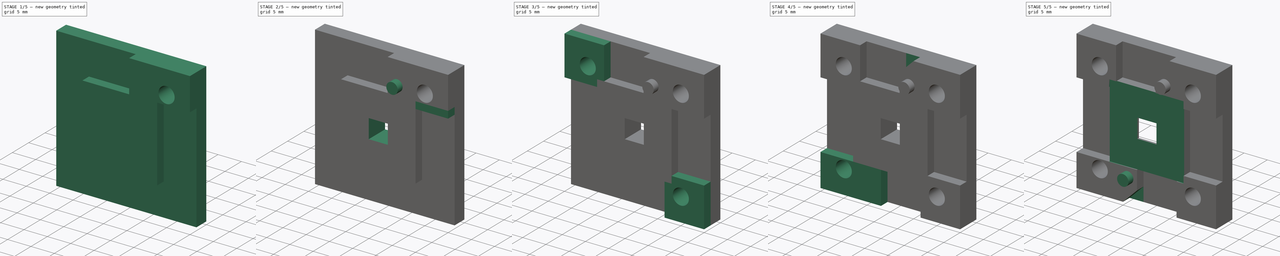
[diagram: build sequence overview — one tinted view per stage of 5, left to right]
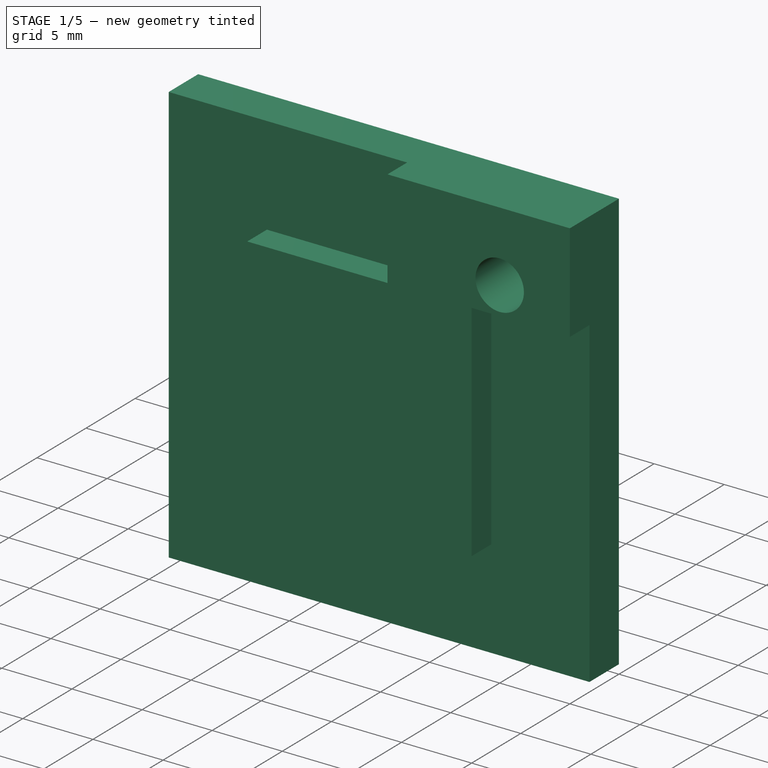
[diagram: stage 1 of 5 — iso view after this stage's code; geometry added in this stage tinted green]
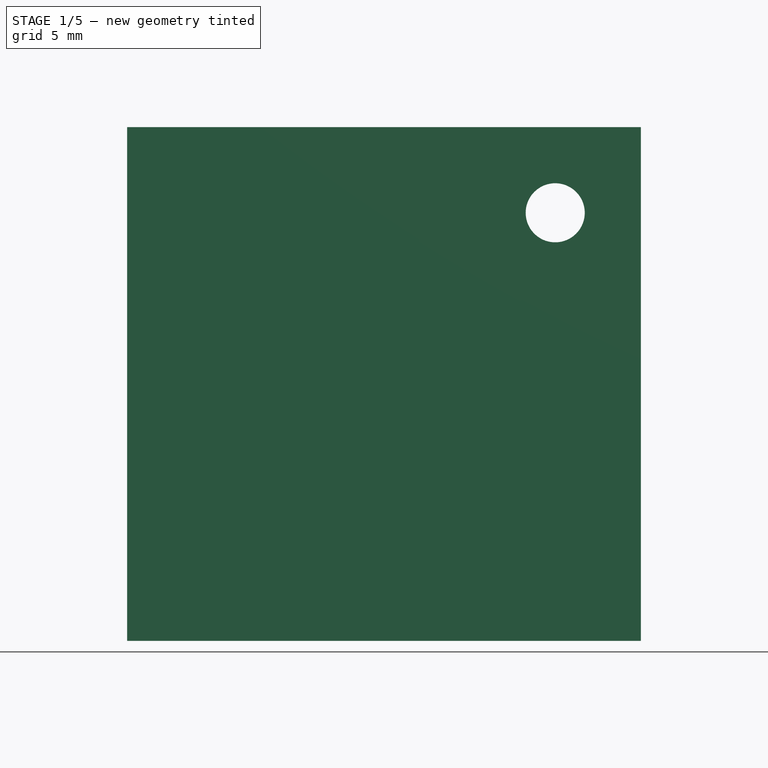
[diagram: stage 1 of 5 — front view after this stage's code; geometry added in this stage tinted green]
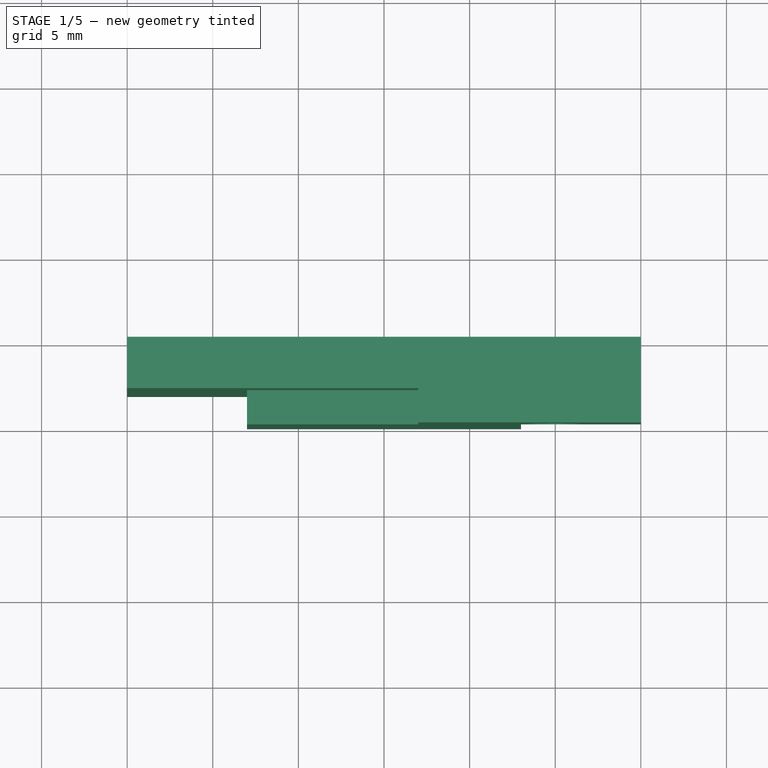
[diagram: stage 1 of 5 — top view after this stage's code; geometry added in this stage tinted green]
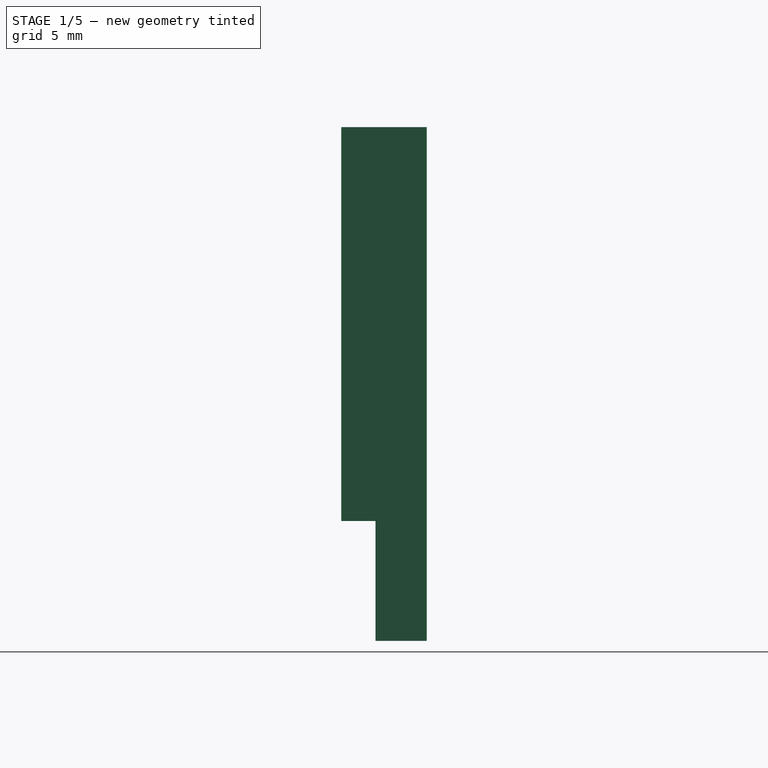
[diagram: stage 1 of 5 — right view after this stage's code; geometry added in this stage tinted green]
FCSTD DOCUMENT  (FreeCAD 0.18.4R)
Label: frontplate
License: All rights reserved
LicenseURL: http://en.wikipedia.org/wiki/All_rights_reserved
objects: Sketcher::SketchObject×18, PartDesign::Pocket×10, PartDesign::Pad×8, PartDesign::Body×1
note: 55 computed .brp shape members not serialized (recipe doc carries the construction recipe); baked Part::Feature solids carry a one-line shape summary decoded from their .brp

FEATURE [Sketcher::SketchObject] Sketch
  MapMode = 5
  Placement = pos=(0,0,0) rot=(1,0,0;1.5708rad)
  Support = -> [XZ_Plane]
  sketch-geometry (4):
    g0: LineSegment StartX=-15 StartY=15 StartZ=0 EndX=15 EndY=15 EndZ=0
    g1: LineSegment StartX=15 StartY=15 StartZ=0 EndX=15 EndY=-15 EndZ=0
    g2: LineSegment StartX=15 StartY=-15 StartZ=0 EndX=-15 EndY=-15 EndZ=0
    g3: LineSegment StartX=-15 StartY=-15 StartZ=0 EndX=-15 EndY=15 EndZ=0
  constraints (12):
    c: Coincident(g0,g1)
    c: Coincident(g1,g2)
    c: Coincident(g2,g3)
    c: Coincident(g3,g0)
    c: Horizontal(g0)
    c: Horizontal(g2)
    c: Vertical(g1)
    c: Vertical(g3)
    c: DistanceX(g0,g0) = 30
    c: DistanceY(g1,g1) = 30
    c: Distance(g-1,g1) = 15
    c: Distance(g-1,g0) = 15
FEATURE [PartDesign::Pad] Pad
  Length = 5
  Length2 = 100
  Placement = pos=(0,0,0) rot=(1,0,0;1.5708rad)
  Profile = -> Sketch
  Reversed = true
  Type = 0
FEATURE [Sketcher::SketchObject] Sketch001
  ExternalGeometry = -> [Pad]
  MapMode = 5
  Placement = pos=(0,0,0) rot=(1,0,0;1.5708rad)
  Support = -> [Pad]
  sketch-geometry (16):
    g0: LineSegment StartX=-8 StartY=15 StartZ=0 EndX=-15 EndY=15 EndZ=0
    g1: LineSegment StartX=-15 StartY=15 StartZ=0 EndX=-15 EndY=-8 EndZ=0
    g2: LineSegment StartX=-15 StartY=-8 StartZ=0 EndX=-8 EndY=-8 EndZ=0
    g3: LineSegment StartX=-8 StartY=-8 StartZ=0 EndX=-8 EndY=15 EndZ=0
    g4: LineSegment StartX=-8 StartY=15 StartZ=0 EndX=15 EndY=15 EndZ=0
    g5: LineSegment StartX=15 StartY=15 StartZ=0 EndX=15 EndY=8 EndZ=0
    g6: LineSegment StartX=15 StartY=8 StartZ=0 EndX=-8 EndY=8 EndZ=0
    g7: LineSegment StartX=-8 StartY=8 StartZ=0 EndX=-8 EndY=15 EndZ=0
    g8: LineSegment StartX=15 StartY=8 StartZ=0 EndX=8 EndY=8 EndZ=0
    g9: LineSegment StartX=8 StartY=8 StartZ=0 EndX=8 EndY=-8 EndZ=0
    g10: LineSegment StartX=8 StartY=-8 StartZ=0 EndX=15 EndY=-8 EndZ=0
    g11: LineSegment StartX=15 StartY=-8 StartZ=0 EndX=15 EndY=8 EndZ=0
    g12: LineSegment StartX=-15 StartY=-8 StartZ=0 EndX=15 EndY=-8 EndZ=0
    g13: LineSegment StartX=15 StartY=-8 StartZ=0 EndX=15 EndY=-15 EndZ=0
    g14: LineSegment StartX=15 StartY=-15 StartZ=0 EndX=-15 EndY=-15 EndZ=0
    g15: LineSegment StartX=-15 StartY=-15 StartZ=0 EndX=-15 EndY=-8 EndZ=0
  constraints (48):
    c: Coincident(g0,g1)
    c: Coincident(g1,g2)
    c: Coincident(g2,g3)
    c: Coincident(g3,g0)
    c: Horizontal(g0)
    c: Horizontal(g2)
    c: Vertical(g1)
    c: Vertical(g3)
    c: Coincident(g4,g5)
    c: Coincident(g5,g6)
    c: Coincident(g6,g7)
    c: Coincident(g7,g4)
    c: Horizontal(g4)
    c: Horizontal(g6)
    c: Vertical(g5)
    c: Vertical(g7)
    c: Coincident(g8,g9)
    c: Coincident(g9,g10)
    c: Coincident(g10,g11)
    c: Coincident(g11,g8)
    c: Horizontal(g8)
    c: Horizontal(g10)
    c: Vertical(g9)
    c: Vertical(g11)
    c: Coincident(g12,g13)
    c: Coincident(g13,g14)
    c: Coincident(g14,g15)
    c: Coincident(g15,g12)
    c: Horizontal(g12)
    c: Horizontal(g14)
    c: Vertical(g13)
    c: Vertical(g15)
    c: DistanceY(g13,g13) = 7
    c: PointOnObject(g12,g-5)
    c: PointOnObject(g12,g-3)
    c: PointOnObject(g13,g-4)
    c: DistanceX(g2,g2) = 7
    c: PointOnObject(g0,g-6)
    c: PointOnObject(g1,g-3)
    c: PointOnObject(g2,g12)
    c: DistanceY(g5,g5) = 7
    c: PointOnObject(g5,g-5)
    c: PointOnObject(g4,g-6)
    c: PointOnObject(g6,g3)
    c: DistanceX(g10,g10) = 7
    c: PointOnObject(g9,g12)
    c: PointOnObject(g10,g-5)
    c: PointOnObject(g8,g6)
FEATURE [PartDesign::Pocket] Pocket
  BaseFeature = -> Pad
  Length = 2
  Length2 = 100
  Placement = pos=(0,0,0) rot=(1,0,0;1.5708rad)
  Profile = -> Sketch001
  Type = 0
FEATURE [Sketcher::SketchObject] Sketch002
  ExternalGeometry = -> [Pocket]
  MapMode = 5
  Placement = pos=(0,2,-1.6e-15) rot=(1,0,0;1.5708rad)
  Support = -> [Pocket]
  sketch-geometry (4):
    g0: LineSegment StartX=15 StartY=15 StartZ=0 EndX=2 EndY=15 EndZ=0
    g1: LineSegment StartX=2 StartY=15 StartZ=0 EndX=2 EndY=8 EndZ=0
    g2: LineSegment StartX=2 StartY=8 StartZ=0 EndX=15 EndY=8 EndZ=0
    g3: LineSegment StartX=15 StartY=8 StartZ=0 EndX=15 EndY=15 EndZ=0
  constraints (11):
    c: Coincident(g0,g1)
    c: Coincident(g1,g2)
    c: Coincident(g2,g3)
    c: Coincident(g3,g0)
    c: Horizontal(g0)
    c: Horizontal(g2)
    c: Vertical(g1)
    c: Vertical(g3)
    c: Coincident(g0,g-4)
    c: DistanceY(g3,g3) = 7
    c: DistanceX(g0,g0) = 13
FEATURE [PartDesign::Pad] Pad001
  BaseFeature = -> Pocket
  Length = 2
  Length2 = 100
  Placement = pos=(0,0,0) rot=(1,0,0;1.5708rad)
  Profile = -> Sketch002
  Type = 0
FEATURE [Sketcher::SketchObject] Sketch003
  ExternalGeometry = -> [Pad001]
  MapMode = 5
  Placement = pos=(0,3e-16,0) rot=(1,0,0;1.5708rad)
  Support = -> [Pad001]
  sketch-geometry (1):
    g0: Circle CenterX=10 CenterY=10 CenterZ=0 NormalX=0 NormalY=0 NormalZ=1 AngleXU=0 Radius=1.725
  constraints (3):
    c: Distance(g0,g-4) = 5
    c: Diameter(g0) = 3.45
    c: DistanceY(g-1,g0) = 10
FEATURE [PartDesign::Pocket] Pocket001
  BaseFeature = -> Pad001
  Length = 5
  Length2 = 100
  Placement = pos=(0,0,0) rot=(1,0,0;1.5708rad)
  Profile = -> Sketch003
  Type = 1
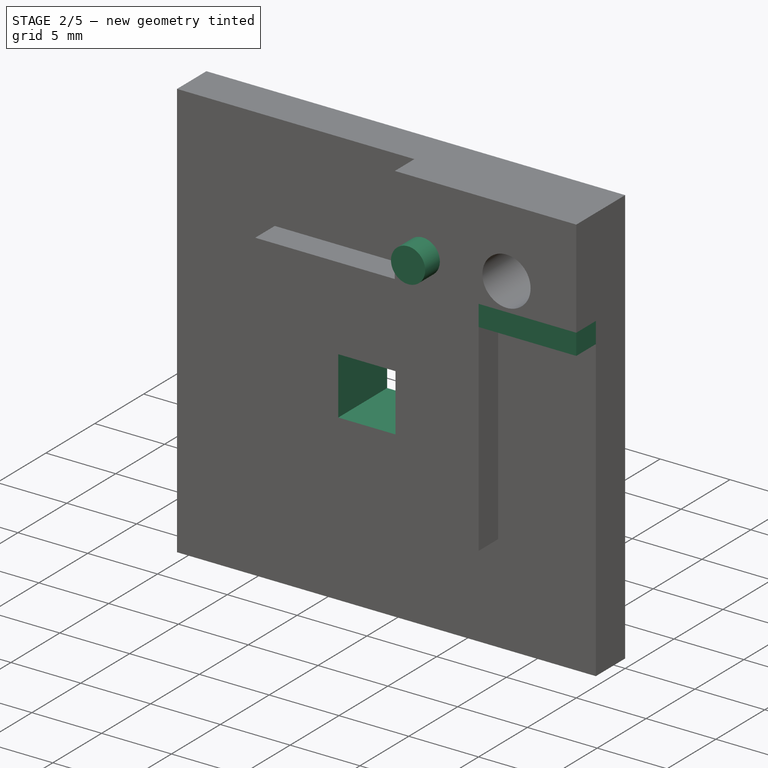
[diagram: stage 2 of 5 — iso view after this stage's code; geometry added in this stage tinted green]
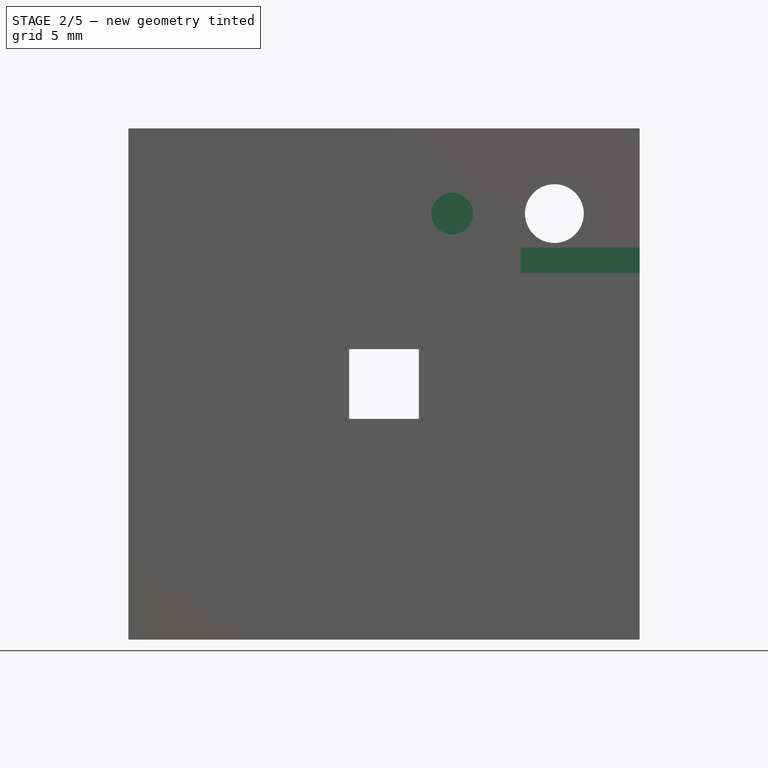
[diagram: stage 2 of 5 — front view after this stage's code; geometry added in this stage tinted green]
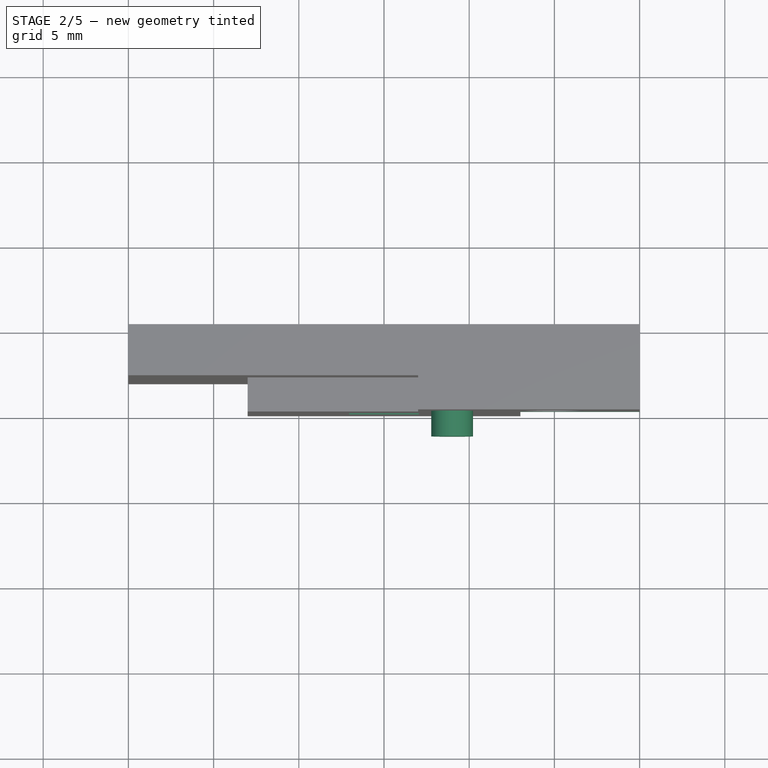
[diagram: stage 2 of 5 — top view after this stage's code; geometry added in this stage tinted green]
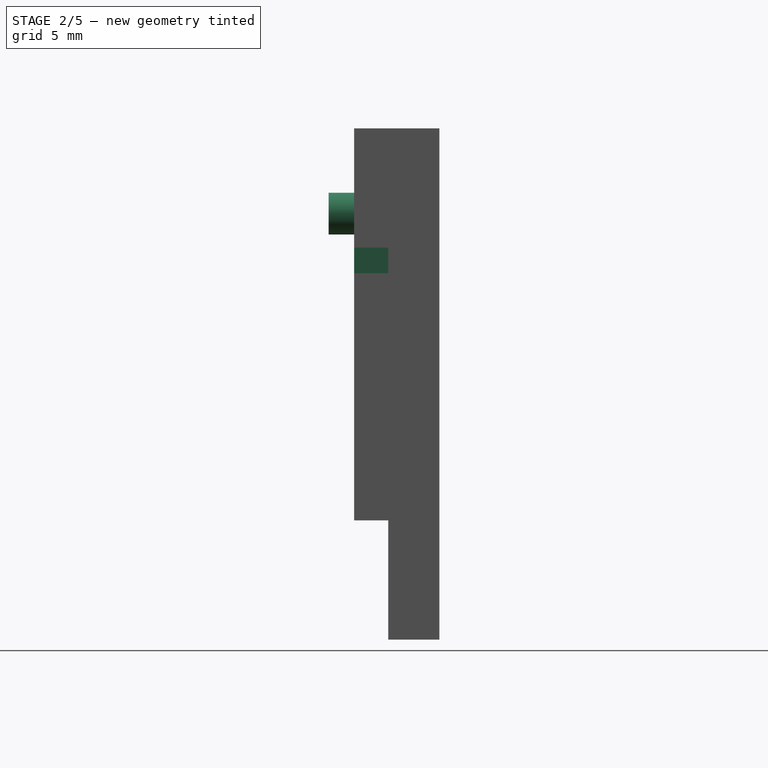
[diagram: stage 2 of 5 — right view after this stage's code; geometry added in this stage tinted green]
FEATURE [Sketcher::SketchObject] Sketch004
  ExternalGeometry = -> [Pocket001]
  MapMode = 5
  Placement = pos=(0,3e-16,0) rot=(1,0,0;1.5708rad)
  Support = -> [Pocket001]
  sketch-geometry (1):
    g0: Circle CenterX=4 CenterY=10 CenterZ=0 NormalX=0 NormalY=0 NormalZ=1 AngleXU=0 Radius=1.225
  constraints (3):
    c: Distance(g0,g-3) = 11
    c: DistanceY(g-1,g0) = 10
    c: Diameter(g0) = 2.45
FEATURE [PartDesign::Pad] Pad002
  BaseFeature = -> Pocket001
  Length = 1.5
  Length2 = 100
  Placement = pos=(0,0,0) rot=(1,0,0;1.5708rad)
  Profile = -> Sketch004
  Type = 0
FEATURE [Sketcher::SketchObject] Sketch005
  ExternalGeometry = -> [Pad002]
  MapMode = 5
  Placement = pos=(0,1.29e-14,8) rot=(1,0,0;3.14159rad)
  Support = -> [Pad002]
  sketch-geometry (4):
    g0: LineSegment StartX=8 StartY=-2e-16 StartZ=0 EndX=15 EndY=-2e-16 EndZ=0
    g1: LineSegment StartX=15 StartY=-2e-16 StartZ=0 EndX=15 EndY=-2 EndZ=0
    g2: LineSegment StartX=15 StartY=-2 StartZ=0 EndX=8 EndY=-2 EndZ=0
    g3: LineSegment StartX=8 StartY=-2 StartZ=0 EndX=8 EndY=-2e-16 EndZ=0
  constraints (10):
    c: Coincident(g0,g1)
    c: Coincident(g1,g2)
    c: Coincident(g2,g3)
    c: Coincident(g3,g0)
    c: Horizontal(g0)
    c: Horizontal(g2)
    c: Vertical(g1)
    c: Vertical(g3)
    c: Coincident(g0,g-5)
    c: Coincident(g1,g-6)
FEATURE [PartDesign::Pad] Pad003
  BaseFeature = -> Pad002
  Length = 1.5
  Length2 = 100
  Placement = pos=(0,0,0) rot=(1,0,0;1.5708rad)
  Profile = -> Sketch005
  Type = 0
FEATURE [Sketcher::SketchObject] Sketch006
  MapMode = 5
  Placement = pos=(0,5,-1.1e-15) rot=(-1,0,0;1.5708rad)
  Support = -> [Pad003]
  sketch-geometry (4):
    g0: LineSegment StartX=-2.05 StartY=2.05 StartZ=0 EndX=2.05 EndY=2.05 EndZ=0
    g1: LineSegment StartX=2.05 StartY=2.05 StartZ=0 EndX=2.05 EndY=-2.05 EndZ=0
    g2: LineSegment StartX=2.05 StartY=-2.05 StartZ=0 EndX=-2.05 EndY=-2.05 EndZ=0
    g3: LineSegment StartX=-2.05 StartY=-2.05 StartZ=0 EndX=-2.05 EndY=2.05 EndZ=0
  constraints (12):
    c: Coincident(g0,g1)
    c: Coincident(g1,g2)
    c: Coincident(g2,g3)
    c: Coincident(g3,g0)
    c: Horizontal(g0)
    c: Horizontal(g2)
    c: Vertical(g1)
    c: Vertical(g3)
    c: DistanceX(g0,g0) = 4.1
    c: DistanceY(g1,g1) = 4.1
    c: Distance(g-1,g0) = 2.05
    c: Distance(g-1,g1) = 2.05
FEATURE [PartDesign::Pocket] Pocket002
  BaseFeature = -> Pad003
  Length = 5
  Length2 = 100
  Placement = pos=(0,0,0) rot=(1,0,0;1.5708rad)
  Profile = -> Sketch006
  Type = 0
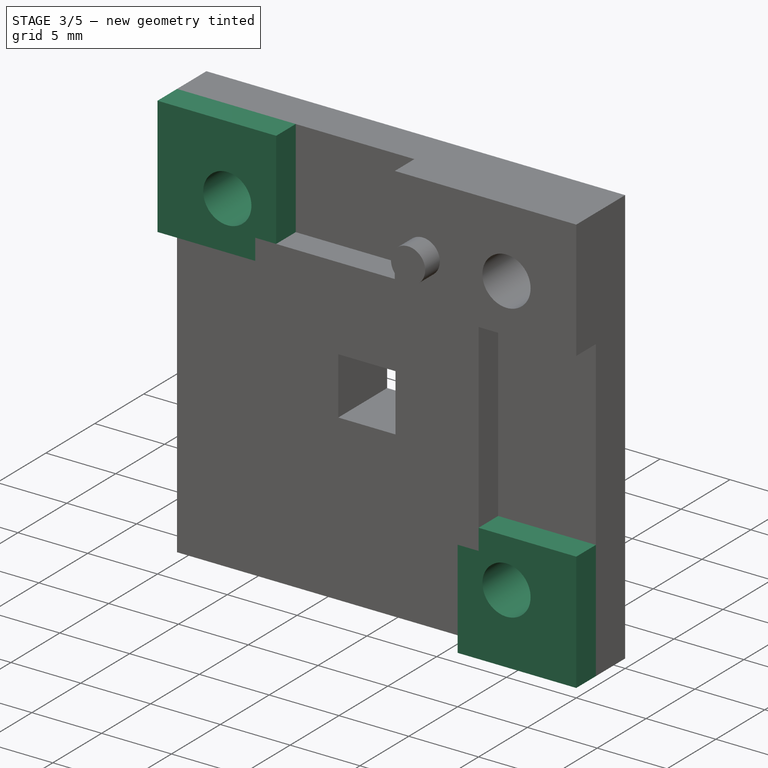
[diagram: stage 3 of 5 — iso view after this stage's code; geometry added in this stage tinted green]
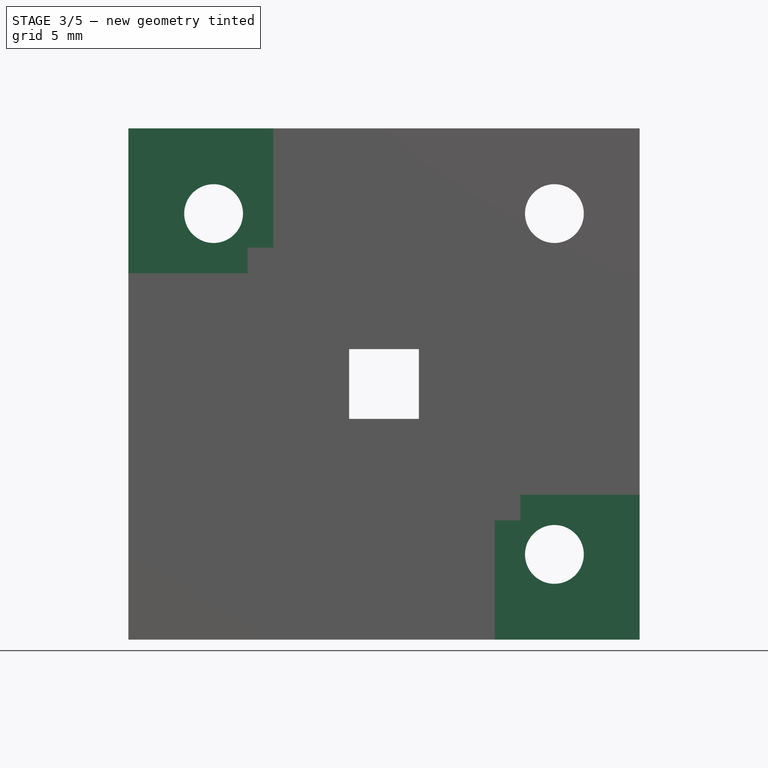
[diagram: stage 3 of 5 — front view after this stage's code; geometry added in this stage tinted green]
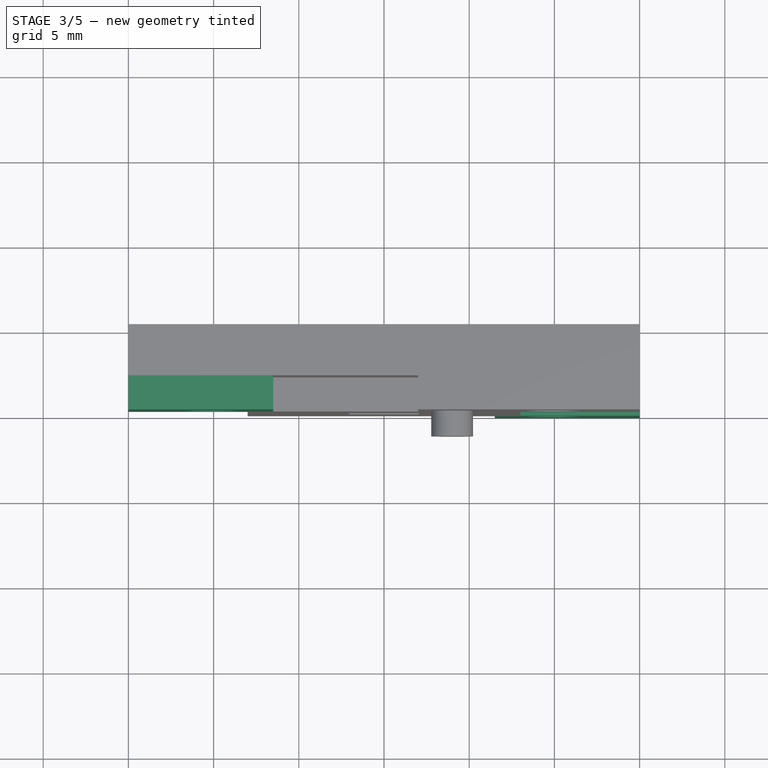
[diagram: stage 3 of 5 — top view after this stage's code; geometry added in this stage tinted green]
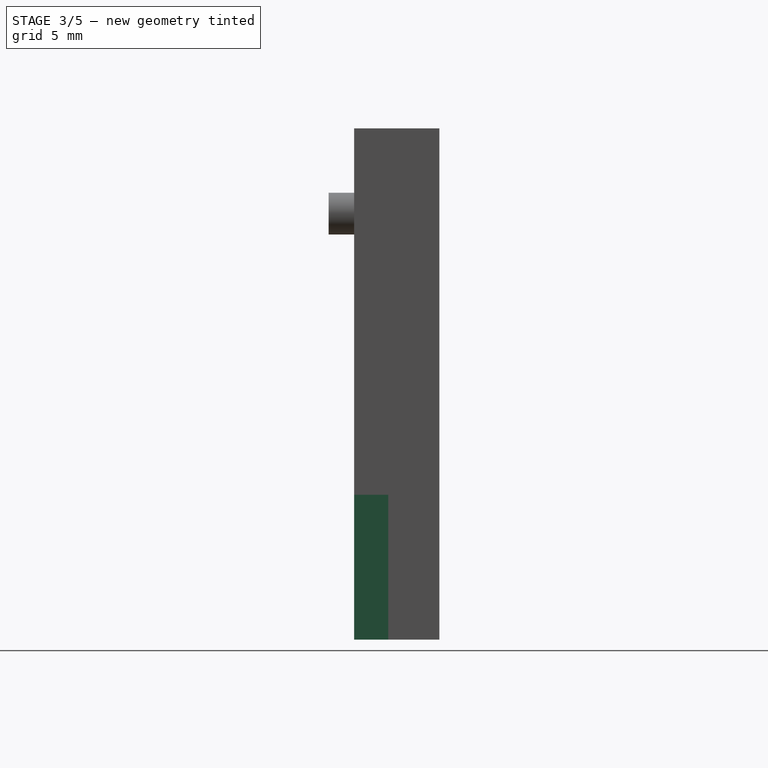
[diagram: stage 3 of 5 — right view after this stage's code; geometry added in this stage tinted green]
FEATURE [Sketcher::SketchObject] Sketch007
  ExternalGeometry = -> [Pocket002]
  MapMode = 5
  Placement = pos=(0,2,-1.6e-15) rot=(1,0,0;1.5708rad)
  Support = -> [Pocket002]
  sketch-geometry (6):
    g0: LineSegment StartX=6.5 StartY=-15 StartZ=0 EndX=15 EndY=-15 EndZ=0
    g1: LineSegment StartX=15 StartY=-6.5 StartZ=0 EndX=15 EndY=-15 EndZ=0
    g2: LineSegment StartX=8 StartY=-6.5 StartZ=0 EndX=15 EndY=-6.5 EndZ=0
    g3: LineSegment StartX=8 StartY=-6.5 StartZ=0 EndX=8 EndY=-8 EndZ=0
    g4: LineSegment StartX=6.5 StartY=-8 StartZ=0 EndX=8 EndY=-8 EndZ=0
    g5: LineSegment StartX=6.5 StartY=-8 StartZ=0 EndX=6.5 EndY=-15 EndZ=0
  constraints (16):
    c: Horizontal(g0)
    c: Vertical(g1)
    c: Horizontal(g2)
    c: Vertical(g5)
    c: DistanceY(g1,g1) = 8.5
    c: DistanceX(g0,g0) = 8.5
    c: Coincident(g0,g1)
    c: Coincident(g0,g-8)
    c: Coincident(g1,g2)
    c: PointOnObject(g2,g-9)
    c: Coincident(g3,g2)
    c: Coincident(g3,g-10)
    c: Coincident(g4,g3)
    c: Horizontal(g4)
    c: Coincident(g5,g0)
    c: Coincident(g4,g5)
FEATURE [PartDesign::Pad] Pad004
  BaseFeature = -> Pocket002
  Length = 2
  Length2 = 100
  Placement = pos=(0,0,0) rot=(1,0,0;1.5708rad)
  Profile = -> Sketch007
  Type = 0
FEATURE [Sketcher::SketchObject] Sketch008
  MapMode = 5
  Placement = pos=(0,-1e-16,0) rot=(1,0,0;1.5708rad)
  Support = -> [Pad004]
  sketch-geometry (1):
    g0: Circle CenterX=10 CenterY=-10 CenterZ=0 NormalX=0 NormalY=0 NormalZ=1 AngleXU=0 Radius=1.725
  constraints (3):
    c: DistanceY(g-1,g0) = -10
    c: DistanceX(g-2,g0) = 10
    c: Diameter(g0) = 3.45
FEATURE [PartDesign::Pocket] Pocket003
  BaseFeature = -> Pad004
  Length = 5
  Length2 = 100
  Placement = pos=(0,0,0) rot=(1,0,0;1.5708rad)
  Profile = -> Sketch008
  Type = 1
FEATURE [Sketcher::SketchObject] Sketch009
  ExternalGeometry = -> [Pocket003]
  MapMode = 5
  Placement = pos=(0,2,-1.6e-15) rot=(1,0,0;1.5708rad)
  Support = -> [Pocket003]
  sketch-geometry (6):
    g0: LineSegment StartX=-15 StartY=15 StartZ=0 EndX=-6.5 EndY=15 EndZ=0
    g1: LineSegment StartX=-15 StartY=15 StartZ=0 EndX=-15 EndY=6.5 EndZ=0
    g2: LineSegment StartX=-6.5 StartY=15 StartZ=0 EndX=-6.5 EndY=8 EndZ=0
    g3: LineSegment StartX=-8 StartY=8 StartZ=0 EndX=-6.5 EndY=8 EndZ=0
    g4: LineSegment StartX=-15 StartY=6.5 StartZ=0 EndX=-8 EndY=6.5 EndZ=0
    g5: LineSegment StartX=-8 StartY=8 StartZ=0 EndX=-8 EndY=6.5 EndZ=0
  constraints (17):
    c: Horizontal(g0)
    c: Vertical(g1)
    c: Vertical(g2)
    c: Horizontal(g3)
    c: DistanceX(g0,g0) = 8.5
    c: DistanceY(g1,g1) = 8.5
    c: Coincident(g1,g0)
    c: Coincident(g2,g0)
    c: Coincident(g3,g2)
    c: Coincident(g0,g-4)
    c: PointOnObject(g2,g-5)
    c: Coincident(g4,g1)
    c: PointOnObject(g4,g-6)
    c: Horizontal(g4)
    c: Coincident(g5,g3)
    c: Coincident(g5,g4)
    c: Vertical(g5)
FEATURE [PartDesign::Pad] Pad005
  BaseFeature = -> Pocket003
  Length = 2
  Length2 = 100
  Placement = pos=(0,0,0) rot=(1,0,0;1.5708rad)
  Profile = -> Sketch009
  Type = 0
FEATURE [Sketcher::SketchObject] Sketch010
  MapMode = 5
  Placement = pos=(0,2e-16,0) rot=(1,0,0;1.5708rad)
  Support = -> [Pad005]
  sketch-geometry (1):
    g0: Circle CenterX=-10 CenterY=10 CenterZ=0 NormalX=0 NormalY=0 NormalZ=1 AngleXU=0 Radius=1.725
  constraints (3):
    c: DistanceX(g-2,g0) = -10
    c: DistanceY(g-1,g0) = 10
    c: Diameter(g0) = 3.45
FEATURE [PartDesign::Pocket] Pocket004
  BaseFeature = -> Pad005
  Length = 5
  Length2 = 100
  Placement = pos=(0,0,0) rot=(1,0,0;1.5708rad)
  Profile = -> Sketch010
  Type = 1
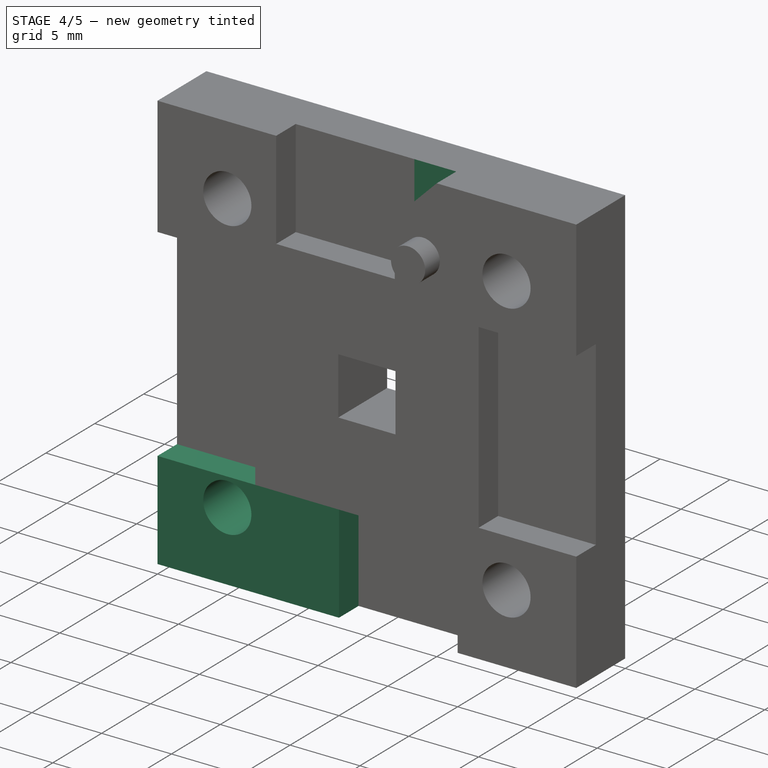
[diagram: stage 4 of 5 — iso view after this stage's code; geometry added in this stage tinted green]
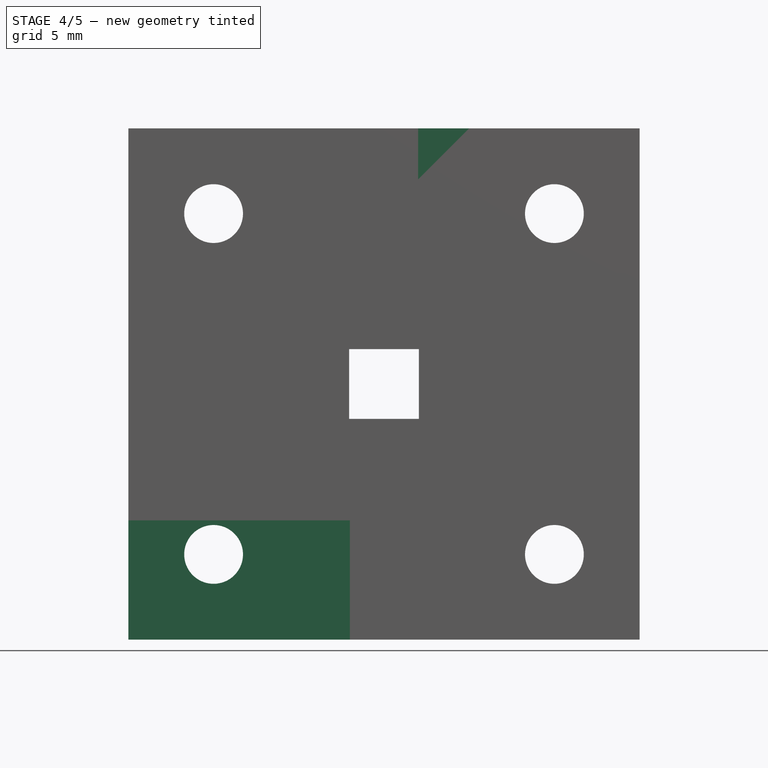
[diagram: stage 4 of 5 — front view after this stage's code; geometry added in this stage tinted green]
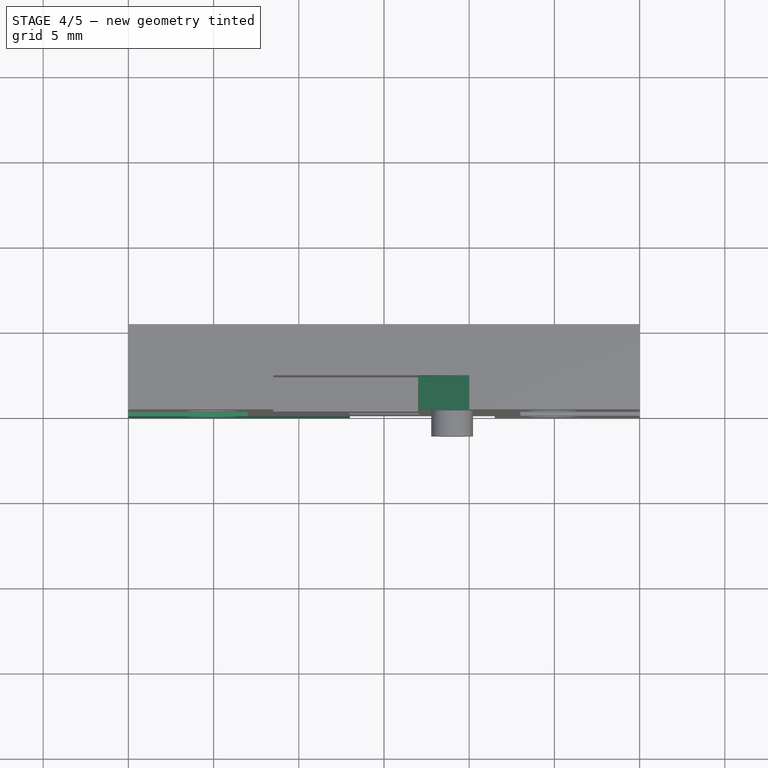
[diagram: stage 4 of 5 — top view after this stage's code; geometry added in this stage tinted green]
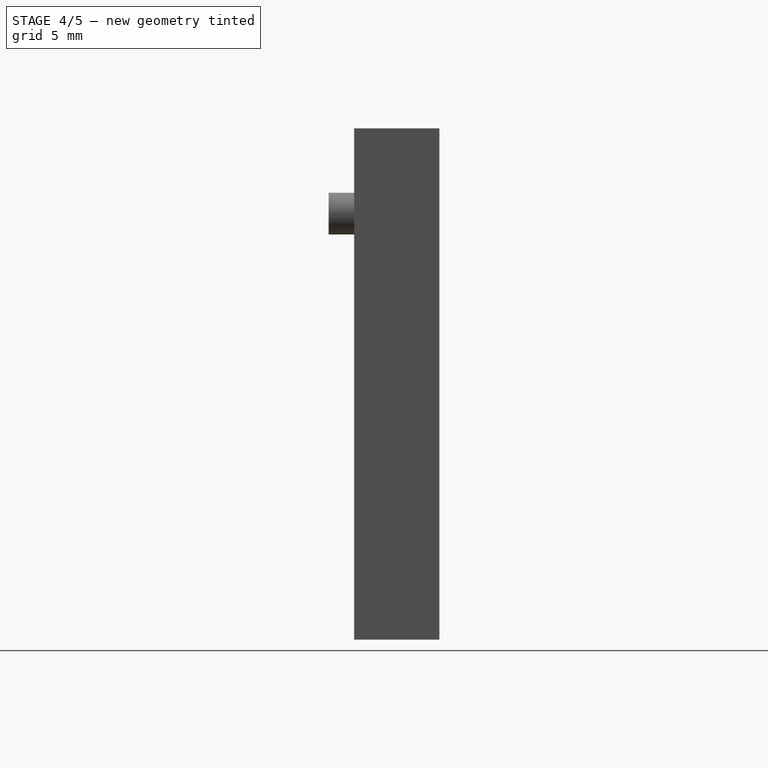
[diagram: stage 4 of 5 — right view after this stage's code; geometry added in this stage tinted green]
FEATURE [Sketcher::SketchObject] Sketch011
  ExternalGeometry = -> [Pocket004]
  MapMode = 5
  Placement = pos=(0,3e-16,0) rot=(1,0,0;1.5708rad)
  Support = -> [Pocket004]
  sketch-geometry (3):
    g0: LineSegment StartX=2 StartY=15 StartZ=0 EndX=2 EndY=12 EndZ=0
    g1: LineSegment StartX=2 StartY=15 StartZ=0 EndX=5 EndY=15 EndZ=0
    g2: LineSegment StartX=2 StartY=12 StartZ=0 EndX=5 EndY=15 EndZ=0
  constraints (8):
    c: Vertical(g0)
    c: Horizontal(g1)
    c: DistanceY(g0,g0) = 3
    c: DistanceX(g1,g1) = 3
    c: Coincident(g1,g0)
    c: Coincident(g0,g-4)
    c: Coincident(g2,g1)
    c: Coincident(g2,g0)
FEATURE [PartDesign::Pocket] Pocket005
  BaseFeature = -> Pocket004
  Length = 2
  Length2 = 100
  Placement = pos=(0,0,0) rot=(1,0,0;1.5708rad)
  Profile = -> Sketch011
  Type = 0
FEATURE [Sketcher::SketchObject] Sketch012
  ExternalGeometry = -> [Pocket005]
  MapMode = 5
  Placement = pos=(0,2,-1.6e-15) rot=(1,0,0;1.5708rad)
  Support = -> [Pocket005]
  sketch-geometry (4):
    g0: LineSegment StartX=-15 StartY=-15 StartZ=0 EndX=-2 EndY=-15 EndZ=0
    g1: LineSegment StartX=-2 StartY=-15 StartZ=0 EndX=-2 EndY=-8 EndZ=0
    g2: LineSegment StartX=-2 StartY=-8 StartZ=0 EndX=-15 EndY=-8 EndZ=0
    g3: LineSegment StartX=-15 StartY=-8 StartZ=0 EndX=-15 EndY=-15 EndZ=0
  constraints (11):
    c: Coincident(g0,g1)
    c: Coincident(g1,g2)
    c: Coincident(g2,g3)
    c: Coincident(g3,g0)
    c: Horizontal(g0)
    c: Horizontal(g2)
    c: Vertical(g1)
    c: Vertical(g3)
    c: Coincident(g0,g-4)
    c: DistanceY(g1,g1) = 7
    c: DistanceX(g0,g0) = 13
FEATURE [PartDesign::Pad] Pad006
  BaseFeature = -> Pocket005
  Length = 2
  Length2 = 100
  Placement = pos=(0,0,0) rot=(1,0,0;1.5708rad)
  Profile = -> Sketch012
  Type = 0
FEATURE [Sketcher::SketchObject] Sketch013
  MapMode = 5
  Placement = pos=(0,-4e-16,0) rot=(1,0,0;1.5708rad)
  Support = -> [Pad006]
  sketch-geometry (1):
    g0: Circle CenterX=-10 CenterY=-10 CenterZ=0 NormalX=0 NormalY=0 NormalZ=1 AngleXU=0 Radius=1.725
  constraints (3):
    c: DistanceX(g-2,g0) = -10
    c: DistanceY(g-1,g0) = -10
    c: Diameter(g0) = 3.45
FEATURE [PartDesign::Pocket] Pocket006
  BaseFeature = -> Pad006
  Length = 5
  Length2 = 100
  Placement = pos=(0,0,0) rot=(1,0,0;1.5708rad)
  Profile = -> Sketch013
  Type = 1
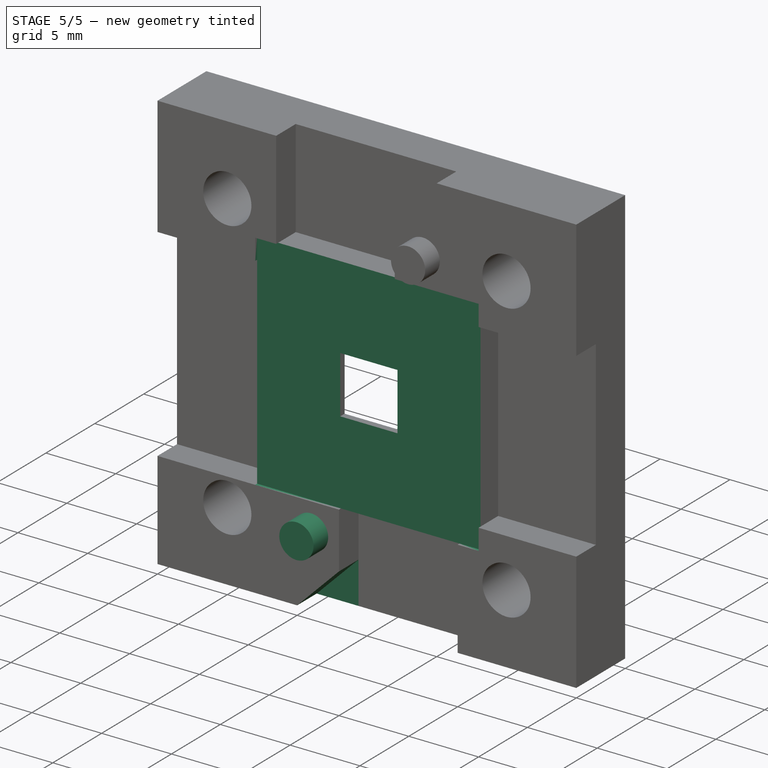
[diagram: stage 5 of 5 — iso view after this stage's code; geometry added in this stage tinted green]
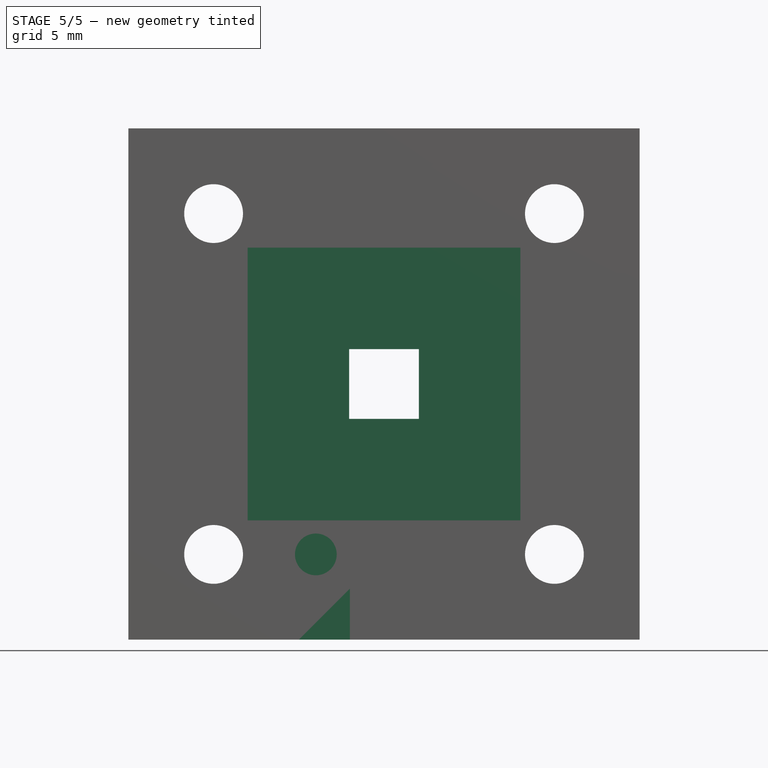
[diagram: stage 5 of 5 — front view after this stage's code; geometry added in this stage tinted green]
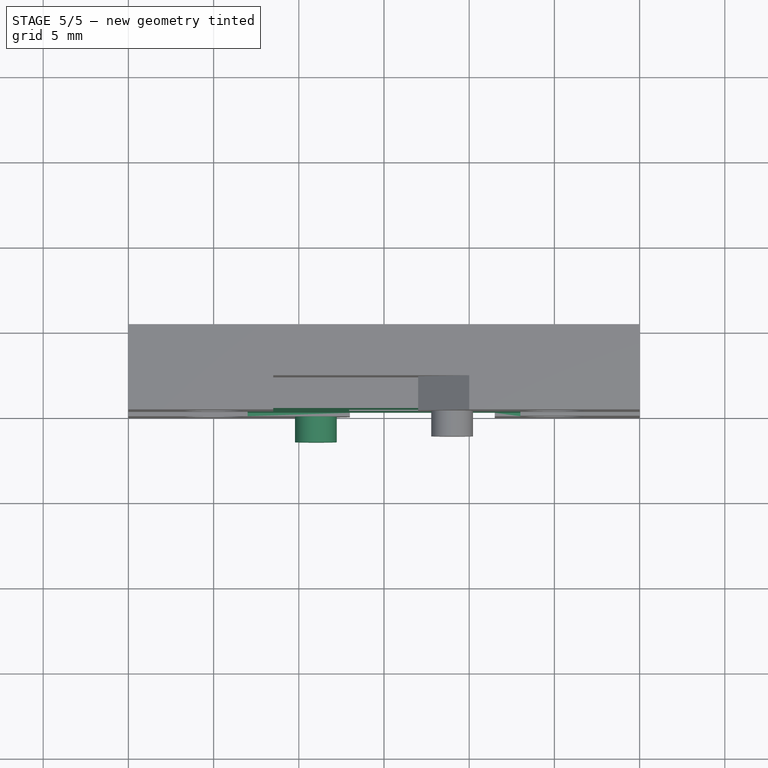
[diagram: stage 5 of 5 — top view after this stage's code; geometry added in this stage tinted green]
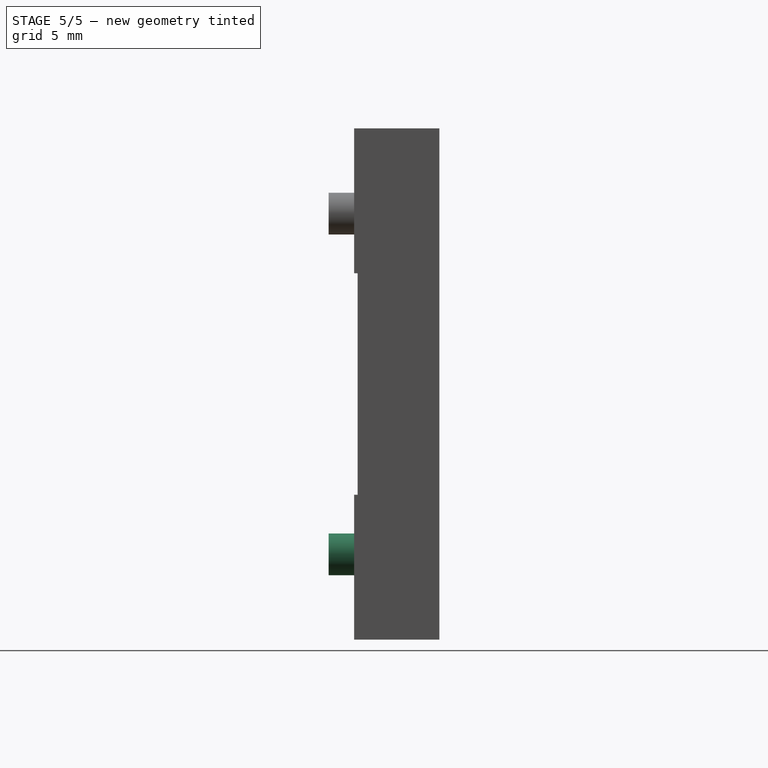
[diagram: stage 5 of 5 — right view after this stage's code; geometry added in this stage tinted green]
FEATURE [Sketcher::SketchObject] Sketch014
  MapMode = 5
  Placement = pos=(0,-4e-16,0) rot=(1,0,0;1.5708rad)
  Support = -> [Pocket006]
  sketch-geometry (1):
    g0: Circle CenterX=-4 CenterY=-10 CenterZ=0 NormalX=0 NormalY=0 NormalZ=1 AngleXU=0 Radius=1.225
  constraints (3):
    c: DistanceX(g-2,g0) = -4
    c: DistanceY(g-1,g0) = -10
    c: Diameter(g0) = 2.45
FEATURE [PartDesign::Pad] Pad007
  BaseFeature = -> Pocket006
  Length = 1.5
  Length2 = 100
  Placement = pos=(0,0,0) rot=(1,0,0;1.5708rad)
  Profile = -> Sketch014
  Type = 0
FEATURE [Sketcher::SketchObject] Sketch015
  ExternalGeometry = -> [Pad007]
  MapMode = 5
  Placement = pos=(0,-4e-16,0) rot=(1,0,0;1.5708rad)
  Support = -> [Pad007]
  sketch-geometry (3):
    g0: LineSegment StartX=-2 StartY=-15 StartZ=0 EndX=-2 EndY=-12 EndZ=0
    g1: LineSegment StartX=-2 StartY=-15 StartZ=0 EndX=-5 EndY=-15 EndZ=0
    g2: LineSegment StartX=-5 StartY=-15 StartZ=0 EndX=-2 EndY=-12 EndZ=0
  constraints (8):
    c: Vertical(g0)
    c: Horizontal(g1)
    c: DistanceY(g0,g0) = 3
    c: DistanceX(g1,g1) = 3
    c: Coincident(g1,g0)
    c: Coincident(g2,g0)
    c: Coincident(g2,g1)
    c: Coincident(g0,g-4)
FEATURE [PartDesign::Pocket] Pocket007
  BaseFeature = -> Pad007
  Length = 2
  Length2 = 100
  Placement = pos=(0,0,0) rot=(1,0,0;1.5708rad)
  Profile = -> Sketch015
  Type = 0
FEATURE [Sketcher::SketchObject] Sketch016
  MapMode = 5
  Placement = pos=(0,5,-1.1e-15) rot=(-1,0,0;1.5708rad)
  Support = -> [Pocket007]
  sketch-geometry (4):
    g0: LineSegment StartX=-6 StartY=6 StartZ=0 EndX=6 EndY=6 EndZ=0
    g1: LineSegment StartX=6 StartY=6 StartZ=0 EndX=6 EndY=-6 EndZ=0
    g2: LineSegment StartX=6 StartY=-6 StartZ=0 EndX=-6 EndY=-6 EndZ=0
    g3: LineSegment StartX=-6 StartY=-6 StartZ=0 EndX=-6 EndY=6 EndZ=0
  constraints (12):
    c: Coincident(g0,g1)
    c: Coincident(g1,g2)
    c: Coincident(g2,g3)
    c: Coincident(g3,g0)
    c: Horizontal(g0)
    c: Horizontal(g2)
    c: Vertical(g1)
    c: Vertical(g3)
    c: DistanceX(g0,g0) = 12
    c: DistanceY(g1,g1) = 12
    c: Distance(g-1,g0) = 6
    c: Distance(g-1,g1) = 6
FEATURE [PartDesign::Pocket] Pocket008
  BaseFeature = -> Pocket007
  Length = 4.35
  Length2 = 100
  Placement = pos=(0,0,0) rot=(1,0,0;1.5708rad)
  Profile = -> Sketch016
  Type = 0
FEATURE [Sketcher::SketchObject] Sketch017
  ExternalGeometry = -> [Pocket008]
  MapMode = 5
  Placement = pos=(0,0,0) rot=(1,0,0;1.5708rad)
  Support = -> [Pocket008]
  sketch-geometry (4):
    g0: LineSegment StartX=-8 StartY=8 StartZ=0 EndX=8 EndY=8 EndZ=0
    g1: LineSegment StartX=8 StartY=8 StartZ=0 EndX=8 EndY=-8 EndZ=0
    g2: LineSegment StartX=8 StartY=-8 StartZ=0 EndX=-8 EndY=-8 EndZ=0
    g3: LineSegment StartX=-8 StartY=-8 StartZ=0 EndX=-8 EndY=8 EndZ=0
  constraints (10):
    c: Coincident(g0,g1)
    c: Coincident(g1,g2)
    c: Coincident(g2,g3)
    c: Coincident(g3,g0)
    c: Horizontal(g0)
    c: Horizontal(g2)
    c: Vertical(g1)
    c: Vertical(g3)
    c: Coincident(g0,g-3)
    c: Coincident(g1,g-4)
FEATURE [PartDesign::Pocket] Pocket009
  BaseFeature = -> Pocket008
  Length = 0.2
  Length2 = 100
  Placement = pos=(0,0,0) rot=(1,0,0;1.5708rad)
  Profile = -> Sketch017
  Type = 0
FEATURE [PartDesign::Body] Body
  Group = -> [Sketch,Pad,Sketch001,Pocket,Sketch002,Pad001,Sketch003,Pocket001,Sketch004,Pad002,Sketch005,Pad003,Sketch006,Pocket002,Sketch007,Pad004,Sketch008,Pocket003,Sketch009,Pad005,Sketch010,Pocket004,Sketch011,Pocket005,Sketch012,Pad006,Sketch013,Pocket006,Sketch014,Pad007,Sketch015,Pocket007,Sketch016,Pocket008,Sketch017,Pocket009]
  Origin = -> Origin
  Tip = -> Pocket009
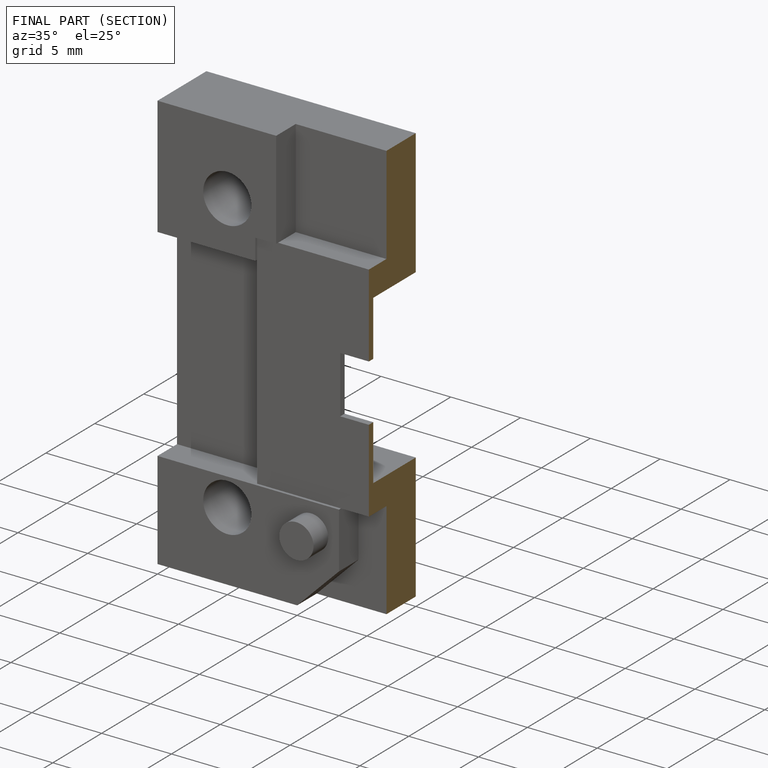
[diagram: finished part — half-section view (interior)]
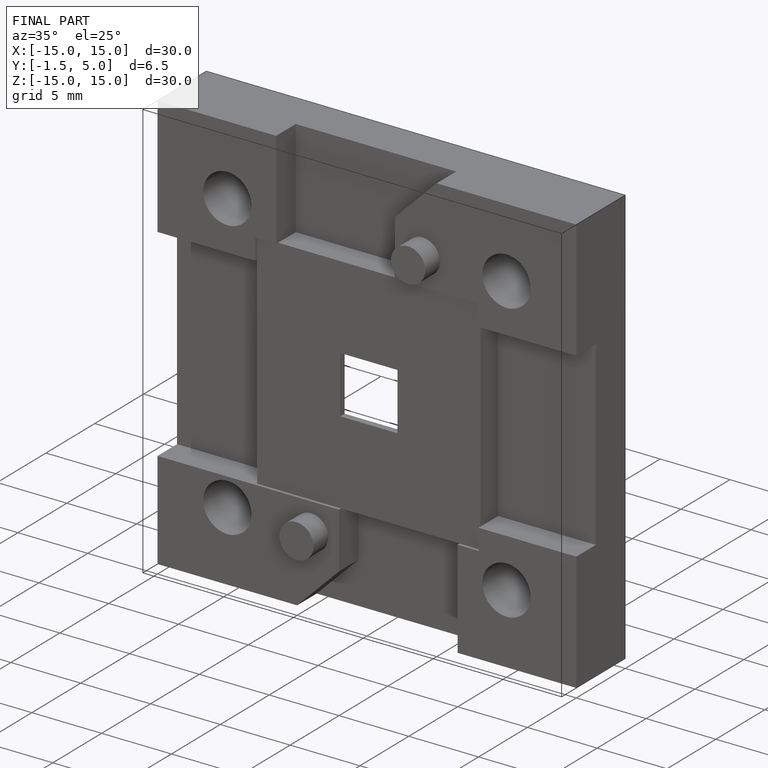
[diagram: finished part — iso view with bounding-box wireframe]
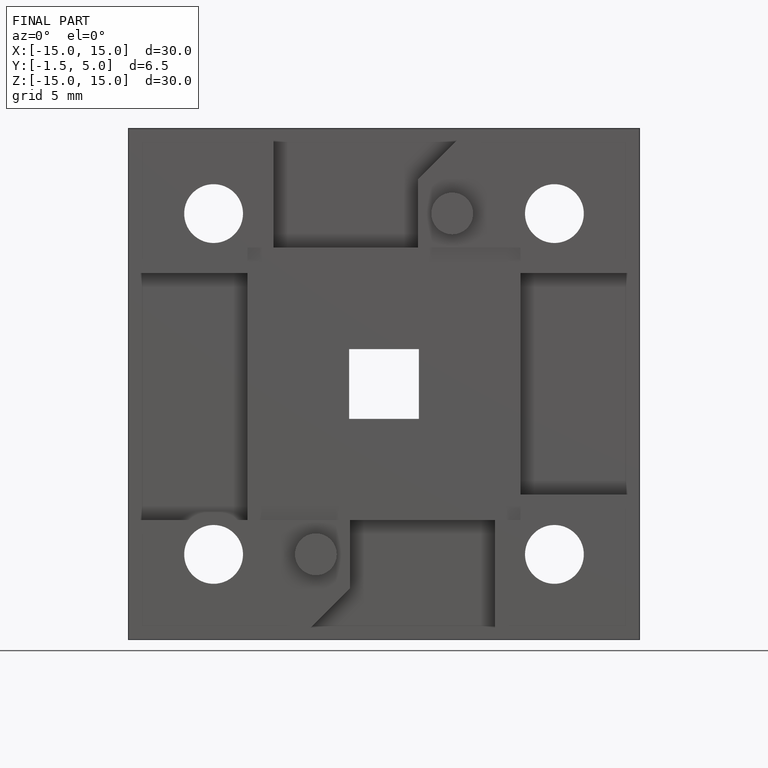
[diagram: finished part — front view with bounding-box wireframe]
